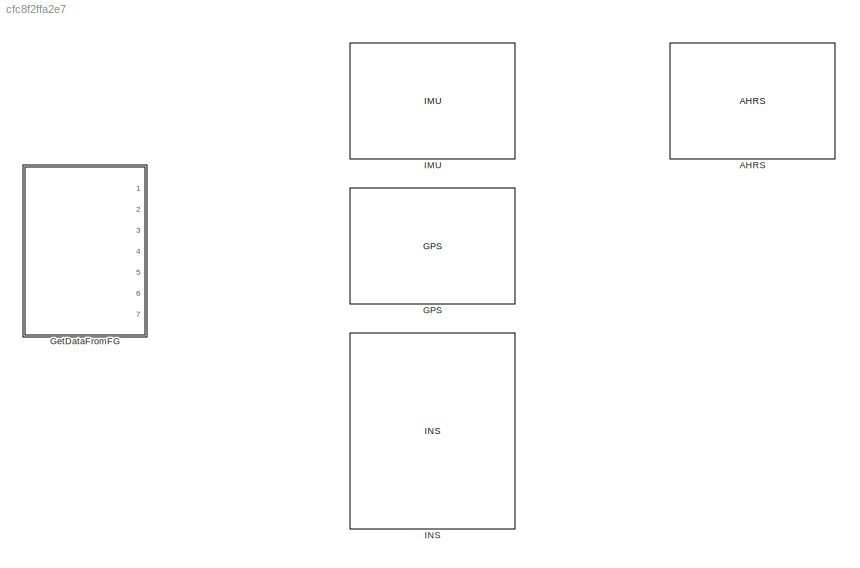
MODEL slx_cfc8f2ffa2e7
KIND model
CONFIG AbsTol = auto
CONFIG EnableMultiTasking = off
CONFIG FixedStep = 0.001
CONFIG MaxStep = auto
CONFIG MinStep = auto
CONFIG RelTol = 1e-3
CONFIG SampleTimeConstraint = Unconstrained
CONFIG SolverName = VariableStepAuto
CONFIG StartTime = 0.0
CONFIG StopTime = inf
WORKSPACE source: mxarray member
WORKSPACE enableTransmit = 1
BLOCK [Reference] AHRS  REF=mspfiltlib/AHRS
  Ports = [3, 2]
  SourceBlock = mspfiltlib/AHRS
  SourceProductBaseCode = TF,NV
  SourceType = fusion.simulink.ahrsfilter
BLOCK [Reference] GPS  REF=sensorgpslib/GPS
  Ports = [2, 4]
  SourceBlock = sensorgpslib/GPS
  SourceProductBaseCode = TF,NV,UV
  SourceType = fusion.internal.simulink.gpsSensor
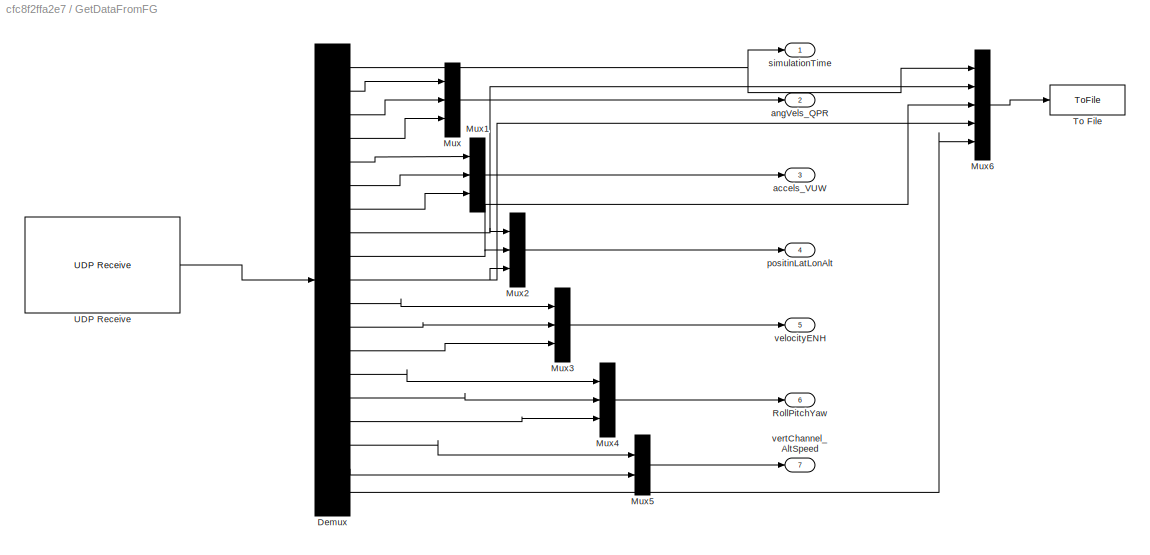
BLOCK [SubSystem] GetDataFromFG
  Ports = [0, 7]
  RequestExecContextInheritance = off
BLOCK [Demux] GetDataFromFG/Demux
  Outputs = 19
  Ports = [1, 19]
BLOCK [Mux] GetDataFromFG/Mux
  DisplayOption = bar
  Inputs = 3
  Ports = [3, 1]
BLOCK [Mux] GetDataFromFG/Mux1
  DisplayOption = bar
  Inputs = 3
  Ports = [3, 1]
BLOCK [Mux] GetDataFromFG/Mux2
  DisplayOption = bar
  Inputs = 3
  Ports = [3, 1]
BLOCK [Mux] GetDataFromFG/Mux3
  DisplayOption = bar
  Inputs = 3
  Ports = [3, 1]
BLOCK [Mux] GetDataFromFG/Mux4
  DisplayOption = bar
  Inputs = 3
  Ports = [3, 1]
BLOCK [Mux] GetDataFromFG/Mux5
  DisplayOption = bar
  Inputs = 2
  Ports = [2, 1]
BLOCK [Mux] GetDataFromFG/Mux6
  DisplayOption = bar
  Inputs = 5
  Ports = [5, 1]
BLOCK [Outport] GetDataFromFG/RollPitchYaw
  Port = 6
BLOCK [ToFile] GetDataFromFG/To File
  Filename = D:\idealTrajMat.mat
  MatrixName = idealTrajData
  Ports = [1]
BLOCK [Reference] GetDataFromFG/UDP Receive  REF=instrumentlib/UDP Receive
  Ports = [0, 1]
  SourceBlock = instrumentlib/UDP Receive
  SourceProductBaseCode = IC
  SourceType = UDP Receive
BLOCK [Outport] GetDataFromFG/accels_VUW
  Port = 3
BLOCK [Outport] GetDataFromFG/angVels_QPR
  Port = 2
BLOCK [Outport] GetDataFromFG/positinLatLonAlt
  Port = 4
BLOCK [Outport] GetDataFromFG/simulationTime
BLOCK [Outport] GetDataFromFG/velocityENH
  Port = 5
BLOCK [Outport] GetDataFromFG/vertChannel_AltSpeed
  Port = 7
BLOCK [Reference] IMU  REF=mspsensorlib/IMU
  Ports = [3, 3]
  SourceBlock = mspsensorlib/IMU
  SourceProductBaseCode = TF,NV
  SourceType = fusion.simulink.imuSensor
BLOCK [Reference] INS  REF=sensorinslib/INS
  Ports = [5, 5]
  SourceBlock = sensorinslib/INS
  SourceProductBaseCode = DR,TF,NV,UV
  SourceType = fusion.internal.simulink.insSensor
NET GetDataFromFG/Demux:1 -> GetDataFromFG/Mux6:1, GetDataFromFG/simulationTime:1
NET GetDataFromFG/Demux:10 -> GetDataFromFG/Mux2:3, GetDataFromFG/Mux6:4
LINE GetDataFromFG/Demux:11 -> GetDataFromFG/Mux3:1
LINE GetDataFromFG/Demux:12 -> GetDataFromFG/Mux3:2
LINE GetDataFromFG/Demux:13 -> GetDataFromFG/Mux3:3
LINE GetDataFromFG/Demux:14 -> GetDataFromFG/Mux4:1
LINE GetDataFromFG/Demux:15 -> GetDataFromFG/Mux4:2
LINE GetDataFromFG/Demux:16 -> GetDataFromFG/Mux4:3
LINE GetDataFromFG/Demux:17 -> GetDataFromFG/Mux5:1
LINE GetDataFromFG/Demux:18 -> GetDataFromFG/Mux5:2
LINE GetDataFromFG/Demux:19 -> GetDataFromFG/Mux6:5
LINE GetDataFromFG/Demux:2 -> GetDataFromFG/Mux:1
LINE GetDataFromFG/Demux:3 -> GetDataFromFG/Mux:2
LINE GetDataFromFG/Demux:4 -> GetDataFromFG/Mux:3
LINE GetDataFromFG/Demux:5 -> GetDataFromFG/Mux1:1
LINE GetDataFromFG/Demux:6 -> GetDataFromFG/Mux1:2
LINE GetDataFromFG/Demux:7 -> GetDataFromFG/Mux1:3
NET GetDataFromFG/Demux:8 -> GetDataFromFG/Mux2:1, GetDataFromFG/Mux6:2
NET GetDataFromFG/Demux:9 -> GetDataFromFG/Mux2:2, GetDataFromFG/Mux6:3
LINE GetDataFromFG/Mux1:1 -> GetDataFromFG/accels_VUW:1
LINE GetDataFromFG/Mux2:1 -> GetDataFromFG/positinLatLonAlt:1
LINE GetDataFromFG/Mux3:1 -> GetDataFromFG/velocityENH:1
LINE GetDataFromFG/Mux4:1 -> GetDataFromFG/RollPitchYaw:1
LINE GetDataFromFG/Mux5:1 -> GetDataFromFG/vertChannel_AltSpeed:1
LINE GetDataFromFG/Mux6:1 -> GetDataFromFG/To File:1
LINE GetDataFromFG/Mux:1 -> GetDataFromFG/angVels_QPR:1
LINE GetDataFromFG/UDP Receive:1 -> GetDataFromFG/Demux:1
note: NET lines group one-source signal fan-out (src -> all destinations, sorted); 1:1 wires keep LINE
